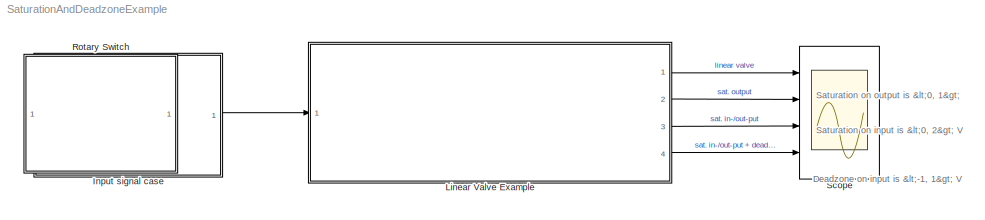
MODEL SaturationAndDeadzoneExample
KIND model
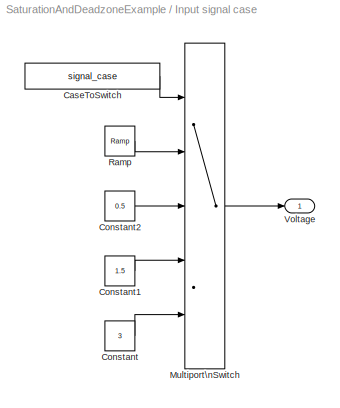
BLOCK [SubSystem] Input signal case
  Ports = [0, 1]
  RequestExecContextInheritance = off
  SID = 39
BLOCK [Constant] Input signal case/CaseToSwitch
  SID = 32
  Value = signal_case
BLOCK [Constant] Input signal case/Constant
  SID = 26
  Value = 3
BLOCK [Constant] Input signal case/Constant1
  SID = 27
  Value = 1.5
BLOCK [Constant] Input signal case/Constant2
  SID = 28
  Value = 0.5
BLOCK [MultiPortSwitch] Input signal case/Multiport\nSwitch
  InputSameDT = off
  Inputs = 4
  Ports = [5, 1]
  SID = 31
  SaturateOnIntegerOverflow = off
BLOCK [Reference] Input signal case/Ramp  REF=simulink/Sources/Ramp
  Ports = [0, 1]
  SID = 30
  SourceBlock = simulink/Sources/Ramp
  SourceProductBaseCode = SL
  SourceProductName = Simulink
  SourceType = Ramp
  VectorParams1D = on
  X0 = 0
  slope = 2
  start = 0
BLOCK [Outport] Input signal case/Voltage
  IconDisplay = Port number
  SID = 40
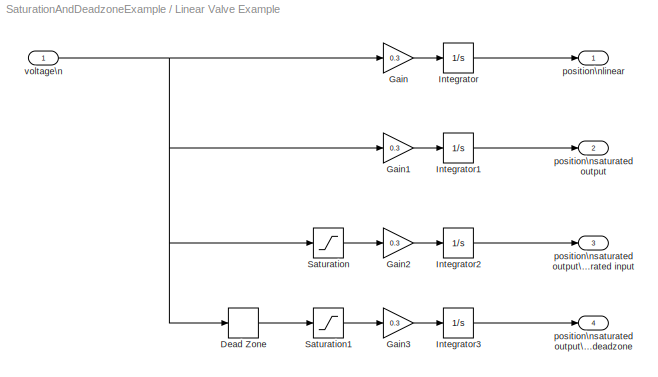
BLOCK [SubSystem] Linear Valve Example
  Ports = [1, 4]
  RequestExecContextInheritance = off
  SID = 17
BLOCK [DeadZone] Linear Valve Example/Dead Zone
  LowerValue = -1
  SID = 16
  SaturateOnIntegerOverflow = off
  UpperValue = 1
BLOCK [Gain] Linear Valve Example/Gain
  Gain = 0.3
  OutDataTypeStr = Inherit: Inherit via internal rule
  ParamDataTypeStr = Inherit: Inherit via internal rule
  SID = 34
  SaturateOnIntegerOverflow = off
BLOCK [Gain] Linear Valve Example/Gain1
  Gain = 0.3
  OutDataTypeStr = Inherit: Inherit via internal rule
  ParamDataTypeStr = Inherit: Inherit via internal rule
  SID = 35
  SaturateOnIntegerOverflow = off
BLOCK [Gain] Linear Valve Example/Gain2
  Gain = 0.3
  OutDataTypeStr = Inherit: Inherit via internal rule
  ParamDataTypeStr = Inherit: Inherit via internal rule
  SID = 36
  SaturateOnIntegerOverflow = off
BLOCK [Gain] Linear Valve Example/Gain3
  Gain = 0.3
  OutDataTypeStr = Inherit: Inherit via internal rule
  ParamDataTypeStr = Inherit: Inherit via internal rule
  SID = 37
  SaturateOnIntegerOverflow = off
BLOCK [Integrator] Linear Valve Example/Integrator
  Ports = [1, 1]
  SID = 2
BLOCK [Integrator] Linear Valve Example/Integrator1
  LimitOutput = on
  LowerSaturationLimit = 0
  Ports = [1, 1]
  SID = 6
  UpperSaturationLimit = 1
BLOCK [Integrator] Linear Valve Example/Integrator2
  LimitOutput = on
  LowerSaturationLimit = 0
  Ports = [1, 1]
  SID = 9
  UpperSaturationLimit = 1
BLOCK [Integrator] Linear Valve Example/Integrator3
  LimitOutput = on
  LowerSaturationLimit = 0
  Ports = [1, 1]
  SID = 13
  UpperSaturationLimit = 1
BLOCK [Saturate] Linear Valve Example/Saturation
  InputPortMap = u0
  LowerLimit = 0
  Ports = [1, 1]
  SID = 11
  UpperLimit = 2
BLOCK [Saturate] Linear Valve Example/Saturation1
  InputPortMap = u0
  LowerLimit = 0
  Ports = [1, 1]
  SID = 14
  UpperLimit = 2
BLOCK [Outport] Linear Valve Example/position\nlinear
  IconDisplay = Port number
  SID = 22
BLOCK [Outport] Linear Valve Example/position\nsaturated output
  IconDisplay = Port number
  Port = 2
  SID = 23
BLOCK [Outport] Linear Valve Example/position\nsaturated output\nsaturated input
  IconDisplay = Port number
  Port = 3
  SID = 24
BLOCK [Outport] Linear Valve Example/position\nsaturated output\nsaturated input\ndeadzone
  IconDisplay = Port number
  Port = 4
  SID = 25
BLOCK [Inport] Linear Valve Example/voltage\n
  IconDisplay = Port number
  SID = 18
BLOCK [SubSystem] Rotary Switch
  DialogController = hmiCreateDDGDialog
  DialogControllerArgs = DataTag0
  IsWebBlock = on
  Ports = []
  RequestExecContextInheritance = off
  SID = 48
BLOCK [Scope] Scope
  Floating = off
  NumInputPorts = 4
  Ports = [4]
  SID = 33
  ScopeSpecificationString = Simulink.scopes.TimeScopeBlockCfg('CurrentConfiguration', extmgr.ConfigurationSet(extmgr.Configuration('Core','General UI',true),extmgr.Configuration('Core','Source UI',true),extmgr.Configuration('Sources','WiredSimulink',true),extmgr.Configuration('Visuals','Time Domain',true,'SerializedDisplays',{struct('MinYLimReal','-0.3375','MaxYLimReal','3.0375','YLabelReal','','MinYLimMag','0.00000','MaxYLi...<+3430ch>
ANNOTATION (root): \n \n Deadzone on input is <-1, 1> V
ANNOTATION (root): \n \n Saturation on input is <0, 2> V
ANNOTATION (root): \n \n Saturation on output is <0, 1>
LINE Input signal case/CaseToSwitch:1 -> Input signal case/Multiport\nSwitch:1
LINE Input signal case/Constant1:1 -> Input signal case/Multiport\nSwitch:4
LINE Input signal case/Constant2:1 -> Input signal case/Multiport\nSwitch:3
LINE Input signal case/Constant:1 -> Input signal case/Multiport\nSwitch:5
LINE Input signal case/Multiport\nSwitch:1 -> Input signal case/Voltage:1
LINE Input signal case/Ramp:1 -> Input signal case/Multiport\nSwitch:2
LINE Input signal case:1 -> Linear Valve Example:1
LINE Linear Valve Example/Dead Zone:1 -> Linear Valve Example/Saturation1:1
LINE Linear Valve Example/Gain1:1 -> Linear Valve Example/Integrator1:1
LINE Linear Valve Example/Gain2:1 -> Linear Valve Example/Integrator2:1
LINE Linear Valve Example/Gain3:1 -> Linear Valve Example/Integrator3:1
LINE Linear Valve Example/Gain:1 -> Linear Valve Example/Integrator:1
LINE Linear Valve Example/Integrator1:1 -> Linear Valve Example/position\nsaturated output:1
LINE Linear Valve Example/Integrator2:1 -> Linear Valve Example/position\nsaturated output\nsaturated input:1
LINE Linear Valve Example/Integrator3:1 -> Linear Valve Example/position\nsaturated output\nsaturated input\ndeadzone:1
LINE Linear Valve Example/Integrator:1 -> Linear Valve Example/position\nlinear:1
LINE Linear Valve Example/Saturation1:1 -> Linear Valve Example/Gain3:1
LINE Linear Valve Example/Saturation:1 -> Linear Valve Example/Gain2:1
NET Linear Valve Example/voltage\n:1 -> Linear Valve Example/Dead Zone:1, Linear Valve Example/Gain1:1, Linear Valve Example/Gain:1, Linear Valve Example/Saturation:1
LINE Linear Valve Example:1 -> Scope:1
LINE Linear Valve Example:2 -> Scope:2
LINE Linear Valve Example:3 -> Scope:3
LINE Linear Valve Example:4 -> Scope:4
note: NET lines group one-source signal fan-out (src -> all destinations, sorted); 1:1 wires keep LINE
